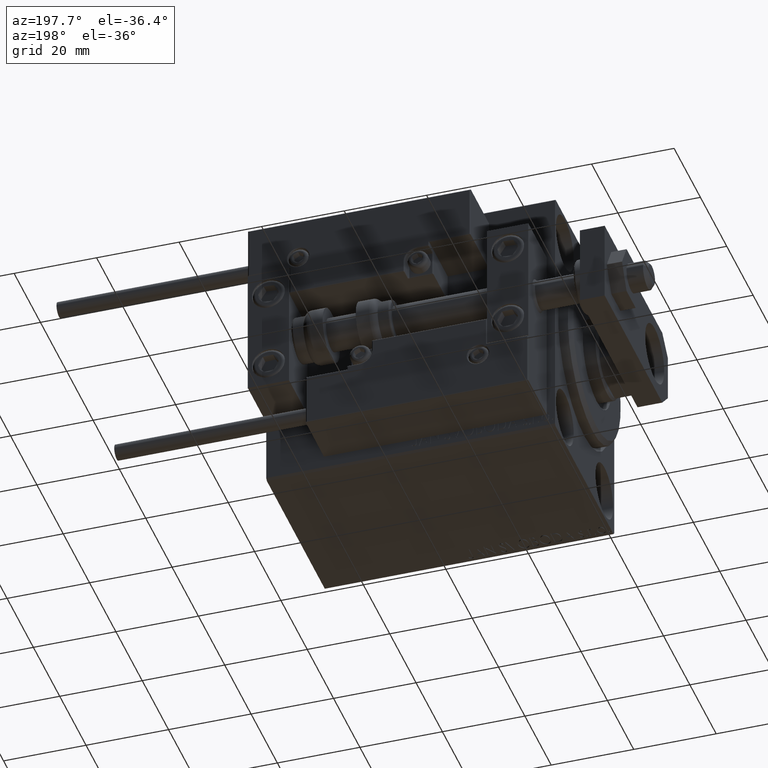
[diagram: clean part render]
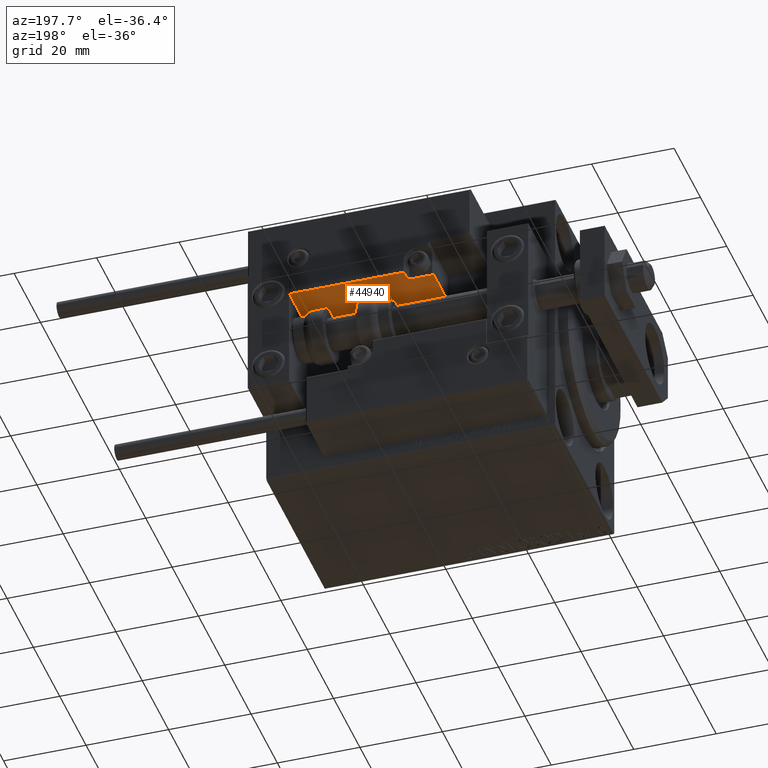
[diagram: same view with one face highlighted and labeled with its STEP entity id]
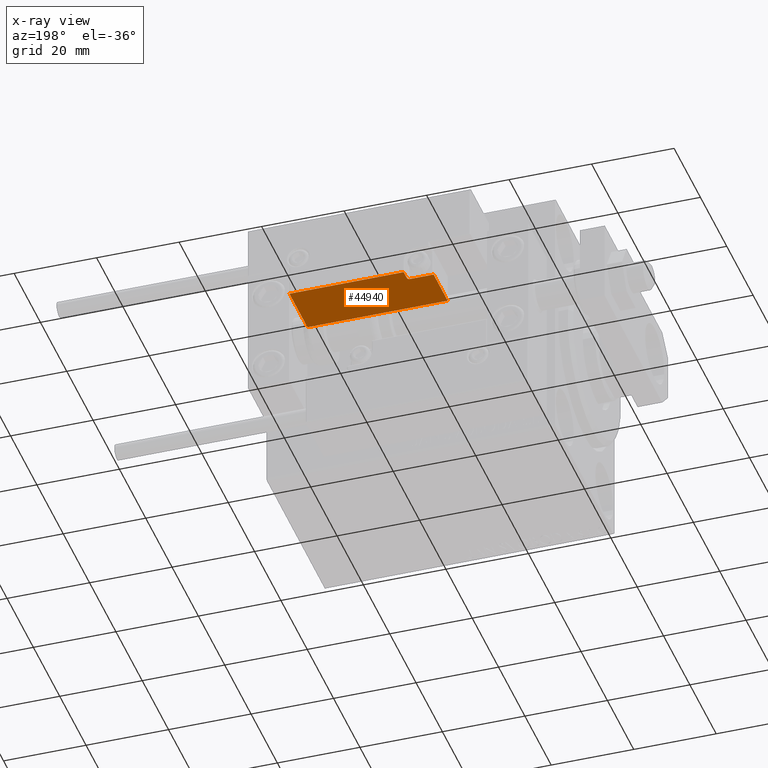
[diagram: x-ray of the same camera — body ghosted, the highlighted face saturated]
A machine part, auxiliary view. The second image highlights one B-rep face of the part: STEP entity #44940.
The next image is the same camera in x-ray: the body ghosted, the highlighted face saturated — about 0% of this face is hidden behind the body in this view.
In plain terms, the highlighted planar face has unit normal (0, 0, 1).
Its self-contained STEP definition (entity closure, byte-faithful):
#8 = ORIENTED_EDGE ( 'NONE', *, *, #42492, .T. ) ;
#451 = DIRECTION ( 'NONE',  ( 0.000000000000000000, 0.000000000000000000, 1.000000000000000000 ) ) ;
#959 = DIRECTION ( 'NONE',  ( -0.000000000000000000, -0.000000000000000000, -1.000000000000000000 ) ) ;
#1103 = CARTESIAN_POINT ( 'NONE',  ( 16.99999999999999289, 3.252606517456513302E-15, 0.000000000000000000 ) ) ;
#2503 = ORIENTED_EDGE ( 'NONE', *, *, #38422, .F. ) ;
#3012 = DIRECTION ( 'NONE',  ( -0.000000000000000000, -0.000000000000000000, -1.000000000000000000 ) ) ;
#5260 = CARTESIAN_POINT ( 'NONE',  ( -16.99999999999999289, 3.252606517456513302E-15, 0.000000000000000000 ) ) ;
#6899 = DIRECTION ( 'NONE',  ( -1.000000000000000000, 0.000000000000000000, -0.000000000000000000 ) ) ;
#7851 = VECTOR ( 'NONE', #3012, 1000.000000000000000 ) ;
#7932 = DIRECTION ( 'NONE',  ( 0.000000000000000000, -0.000000000000000000, 1.000000000000000000 ) ) ;
#9672 = CARTESIAN_POINT ( 'NONE',  ( -16.99999999999999289, 3.252606517456513302E-15, 13.70000000000000107 ) ) ;
#11070 = EDGE_CURVE ( 'NONE', #20623, #24845, #15974, .T. ) ;
#11296 = AXIS2_PLACEMENT_3D ( 'NONE', #19234, #15182, #451 ) ;
#12121 = EDGE_CURVE ( 'NONE', #27795, #34817, #39260, .T. ) ;
#13391 = DIRECTION ( 'NONE',  ( 1.000000000000000000, 0.000000000000000000, 0.000000000000000000 ) ) ;
#13944 = PLANE ( 'NONE',  #29154 ) ;
#15182 = DIRECTION ( 'NONE',  ( -0.000000000000000000, -1.000000000000000000, -0.000000000000000000 ) ) ;
#15345 = CIRCLE ( 'NONE', #11296, 0.5999999999999998668 ) ;
#15974 = LINE ( 'NONE', #21029, #46632 ) ;
#18765 = CARTESIAN_POINT ( 'NONE',  ( 16.99999999999999289, 3.252606517456513302E-15, 10.69999999999999929 ) ) ;
#18774 = ORIENTED_EDGE ( 'NONE', *, *, #24810, .T. ) ;
#18938 = EDGE_LOOP ( 'NONE', ( #2503, #39703, #19694, #18774, #39872, #46158, #8 ) ) ;
#19234 = CARTESIAN_POINT ( 'NONE',  ( 11.29999999999999893, 3.252606517456513302E-15, 11.29999999999999893 ) ) ;
#19318 = VERTEX_POINT ( 'NONE', #1103 ) ;
#19694 = ORIENTED_EDGE ( 'NONE', *, *, #44987, .F. ) ;
#20623 = VERTEX_POINT ( 'NONE', #18765 ) ;
#21029 = CARTESIAN_POINT ( 'NONE',  ( 11.00000000000000000, 3.252606517456513302E-15, 10.69999999999999929 ) ) ;
#21532 = DIRECTION ( 'NONE',  ( -1.000000000000000000, 0.000000000000000000, -0.000000000000000000 ) ) ;
#21791 = FACE_OUTER_BOUND ( 'NONE', #18938, .T. ) ;
#22282 = LINE ( 'NONE', #37747, #7851 ) ;
#24550 = LINE ( 'NONE', #5260, #25816 ) ;
#24810 = EDGE_CURVE ( 'NONE', #33215, #40995, #46700, .T. ) ;
#24845 = VERTEX_POINT ( 'NONE', #43153 ) ;
#25816 = VECTOR ( 'NONE', #13391, 1000.000000000000000 ) ;
#27472 = CARTESIAN_POINT ( 'NONE',  ( 10.70000000000000107, 3.252606517456513302E-15, 14.00000000000000000 ) ) ;
#27795 = VERTEX_POINT ( 'NONE', #9672 ) ;
#29154 = AXIS2_PLACEMENT_3D ( 'NONE', #37256, #29669, #30670 ) ;
#29669 = DIRECTION ( 'NONE',  ( 0.000000000000000000, 1.000000000000000000, 0.000000000000000000 ) ) ;
#30670 = DIRECTION ( 'NONE',  ( 0.000000000000000000, -0.000000000000000000, 1.000000000000000000 ) ) ;
#31664 = CARTESIAN_POINT ( 'NONE',  ( -16.99999999999999289, 3.252606517456513302E-15, 14.00000000000000000 ) ) ;
#32431 = VECTOR ( 'NONE', #7932, 1000.000000000000000 ) ;
#33017 = VECTOR ( 'NONE', #6899, 1000.000000000000000 ) ;
#33215 = VERTEX_POINT ( 'NONE', #35201 ) ;
#33598 = CARTESIAN_POINT ( 'NONE',  ( -16.99999999999999289, 3.252606517456513302E-15, 0.000000000000000000 ) ) ;
#34817 = VERTEX_POINT ( 'NONE', #33598 ) ;
#34969 = CARTESIAN_POINT ( 'NONE',  ( 10.70000000000000107, 3.252606517456513302E-15, 13.70000000000000107 ) ) ;
#35201 = CARTESIAN_POINT ( 'NONE',  ( 10.70000000000000107, 3.252606517456513302E-15, 11.29999999999999893 ) ) ;
#36980 = VECTOR ( 'NONE', #959, 1000.000000000000000 ) ;
#37256 = CARTESIAN_POINT ( 'NONE',  ( -16.99999999999999289, 3.252606517456513302E-15, 14.00000000000000000 ) ) ;
#37747 = CARTESIAN_POINT ( 'NONE',  ( 16.99999999999999289, 3.252606517456513302E-15, 14.00000000000000000 ) ) ;
#38422 = EDGE_CURVE ( 'NONE', #20623, #19318, #22282, .T. ) ;
#39260 = LINE ( 'NONE', #31664, #36980 ) ;
#39703 = ORIENTED_EDGE ( 'NONE', *, *, #11070, .T. ) ;
#39872 = ORIENTED_EDGE ( 'NONE', *, *, #40579, .T. ) ;
#40579 = EDGE_CURVE ( 'NONE', #40995, #27795, #41123, .T. ) ;
#40995 = VERTEX_POINT ( 'NONE', #34969 ) ;
#41123 = LINE ( 'NONE', #45912, #33017 ) ;
#42492 = EDGE_CURVE ( 'NONE', #34817, #19318, #24550, .T. ) ;
#43153 = CARTESIAN_POINT ( 'NONE',  ( 11.29999999999999893, 3.252606517456513302E-15, 10.69999999999999929 ) ) ;
#44940 = ADVANCED_FACE ( 'NONE', ( #21791 ), #13944, .F. ) ;
#44987 = EDGE_CURVE ( 'NONE', #33215, #24845, #15345, .T. ) ;
#45912 = CARTESIAN_POINT ( 'NONE',  ( -16.99999999999999289, 3.252606517456513302E-15, 13.70000000000000107 ) ) ;
#46158 = ORIENTED_EDGE ( 'NONE', *, *, #12121, .T. ) ;
#46632 = VECTOR ( 'NONE', #21532, 1000.000000000000000 ) ;
#46700 = LINE ( 'NONE', #27472, #32431 ) ;